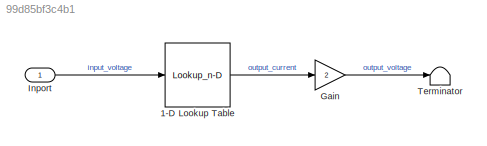
MODEL slx_99d85bf3c4b1
KIND model
CONFIG AbsTol = auto
CONFIG EnableMultiTasking = off
CONFIG FixedStep = auto
CONFIG MaxStep = auto
CONFIG MinStep = auto
CONFIG PostLoadFcn = voltage_dummy;
CONFIG RelTol = 1e-3
CONFIG SampleTimeConstraint = Unconstrained
CONFIG SolverName = VariableStepAuto
CONFIG StartTime = 0.0
CONFIG StopTime = 10.0
BLOCK [Lookup_n-D] 1-D Lookup Table
  BreakpointsForDimension1 = Vd
  InputPortMap = u0
  InternalRulePriority = Speed
  NumberOfTableDimensions = 1
  Ports = [1, 1]
  RndMeth = Simplest
  Table = i
BLOCK [Gain] Gain
  Gain = 2
BLOCK [Inport] Inport
BLOCK [Terminator] Terminator
LINE 1-D Lookup Table:1 -> Gain:1
LINE Gain:1 -> Terminator:1
LINE Inport:1 -> 1-D Lookup Table:1
